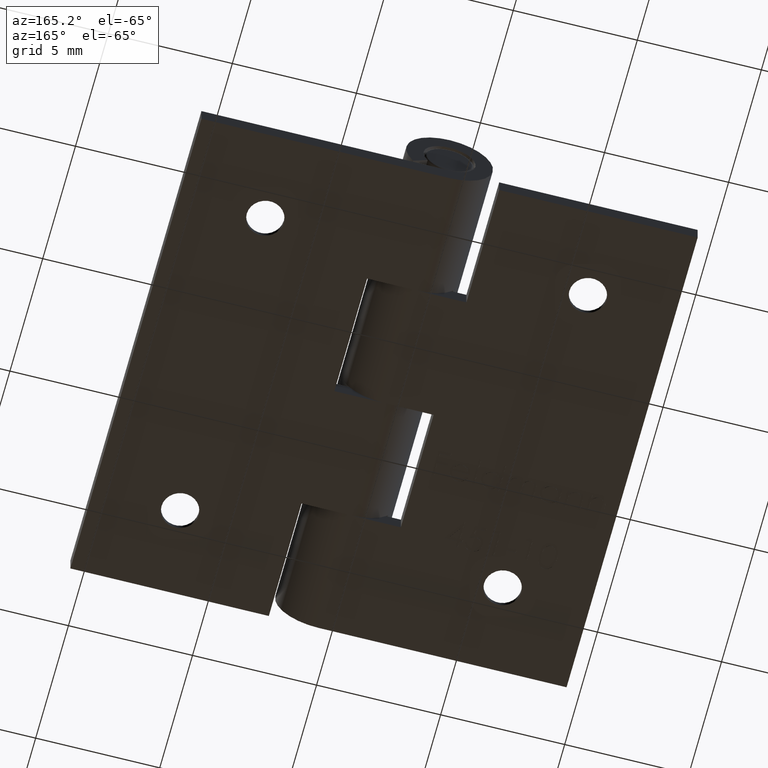
[diagram: clean part render]
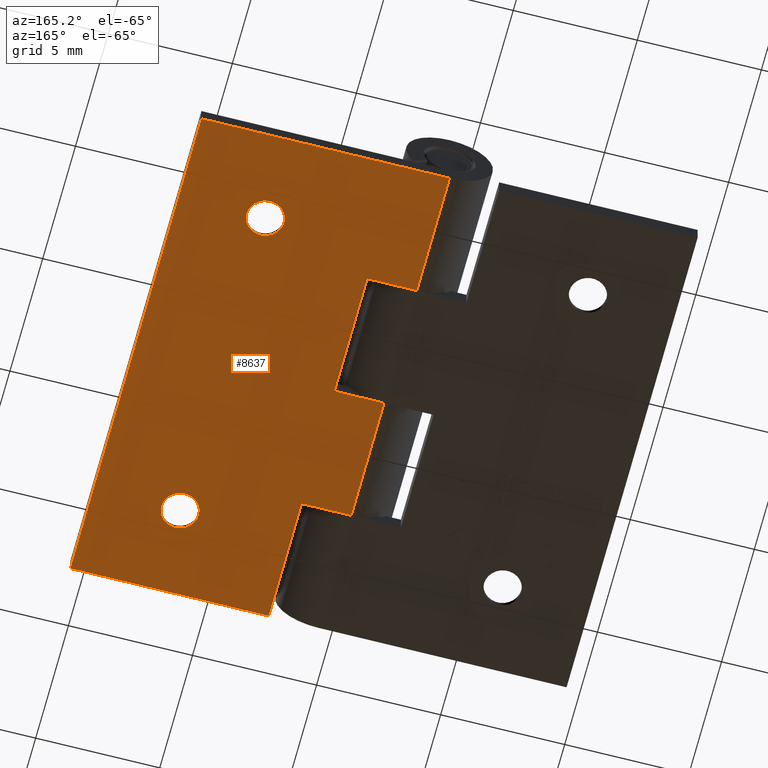
[diagram: same view with one face highlighted and labeled with its STEP entity id]
A machine part, auxiliary view. The second image highlights one B-rep face of the part: STEP entity #8637.
In plain terms, the highlighted planar face has unit normal (0, 0, 1).
Its self-contained STEP definition (entity closure, byte-faithful):
#80 = CARTESIAN_POINT ( 'NONE',  ( -11.75000000000000000, -10.00000000000000000, 1.084202172485504434E-15 ) ) ;
#412 = DIRECTION ( 'NONE',  ( -1.000000000000000000, 0.000000000000000000, 1.301042606982605321E-16 ) ) ;
#438 = VECTOR ( 'NONE', #412, 1000.000000000000000 ) ;
#515 = VERTEX_POINT ( 'NONE', #1952 ) ;
#563 = LINE ( 'NONE', #2904, #438 ) ;
#572 = CARTESIAN_POINT ( 'NONE',  ( -3.750000000000000444, -5.000000000000000000, 4.878909776184769953E-16 ) ) ;
#609 = CIRCLE ( 'NONE', #6478, 0.7500000000000006661 ) ;
#677 = DIRECTION ( 'NONE',  ( 8.673617379884034239E-17, 1.000000000000000000, 0.000000000000000000 ) ) ;
#836 = EDGE_LOOP ( 'NONE', ( #6762 ) ) ;
#1043 = EDGE_LOOP ( 'NONE', ( #7894, #6210, #8353, #8294, #6379, #5961, #3383, #3213, #9739, #9691 ) ) ;
#1174 = VERTEX_POINT ( 'NONE', #4374 ) ;
#1246 = VERTEX_POINT ( 'NONE', #1981 ) ;
#1250 = DIRECTION ( 'NONE',  ( -0.000000000000000000, 1.000000000000000000, -0.000000000000000000 ) ) ;
#1443 = EDGE_CURVE ( 'NONE', #515, #6344, #3877, .T. ) ;
#1480 = DIRECTION ( 'NONE',  ( -0.000000000000000000, -1.000000000000000000, -0.000000000000000000 ) ) ;
#1535 = DIRECTION ( 'NONE',  ( -1.000000000000000000, -1.470104640658311001E-16, 1.301042606982605321E-16 ) ) ;
#1882 = FACE_OUTER_BOUND ( 'NONE', #1043, .T. ) ;
#1952 = CARTESIAN_POINT ( 'NONE',  ( -1.750000000000000444, -10.00000000000000000, -1.084202172485504434E-16 ) ) ;
#1961 = CARTESIAN_POINT ( 'NONE',  ( -1.750000000000000444, 10.00000000000000000, -1.084202172485504434E-16 ) ) ;
#1981 = CARTESIAN_POINT ( 'NONE',  ( -7.500000000000001776, -6.500000000000000888, -1.084202172485504434E-16 ) ) ;
#2017 = DIRECTION ( 'NONE',  ( 1.000000000000000000, 0.000000000000000000, 0.000000000000000000 ) ) ;
#2037 = EDGE_CURVE ( 'NONE', #3991, #5933, #3364, .T. ) ;
#2050 = VECTOR ( 'NONE', #2602, 1000.000000000000000 ) ;
#2078 = CARTESIAN_POINT ( 'NONE',  ( -1.750000000000000444, -10.00000000000000000, -1.084202172485504434E-16 ) ) ;
#2216 = CARTESIAN_POINT ( 'NONE',  ( -3.750000000000000000, 5.000000000000000888, 4.878909776184769953E-16 ) ) ;
#2511 = FACE_BOUND ( 'NONE', #4181, .T. ) ;
#2572 = VECTOR ( 'NONE', #677, 1000.000000000000000 ) ;
#2602 = DIRECTION ( 'NONE',  ( -0.000000000000000000, -1.000000000000000000, -0.000000000000000000 ) ) ;
#2643 = FACE_BOUND ( 'NONE', #836, .T. ) ;
#2670 = CARTESIAN_POINT ( 'NONE',  ( -1.750000000000000444, 10.00000000000000000, -1.084202172485504434E-16 ) ) ;
#2718 = EDGE_CURVE ( 'NONE', #3288, #8731, #7362, .T. ) ;
#2904 = CARTESIAN_POINT ( 'NONE',  ( 8.050000000000000711, 5.000000000000000888, -1.047339298620997480E-15 ) ) ;
#3025 = CIRCLE ( 'NONE', #6271, 0.7500000000000006661 ) ;
#3040 = DIRECTION ( 'NONE',  ( 1.192622389734054877E-16, -0.000000000000000000, 1.000000000000000000 ) ) ;
#3062 = CARTESIAN_POINT ( 'NONE',  ( -1.749999999999999778, 5.000000000000000888, 2.276824562219558818E-16 ) ) ;
#3115 = EDGE_CURVE ( 'NONE', #8731, #3552, #3848, .T. ) ;
#3120 = PLANE ( 'NONE',  #8332 ) ;
#3211 = VECTOR ( 'NONE', #5169, 1000.000000000000000 ) ;
#3213 = ORIENTED_EDGE ( 'NONE', *, *, #3752, .F. ) ;
#3288 = VERTEX_POINT ( 'NONE', #9287 ) ;
#3364 = LINE ( 'NONE', #8505, #9183 ) ;
#3383 = ORIENTED_EDGE ( 'NONE', *, *, #5498, .F. ) ;
#3399 = VERTEX_POINT ( 'NONE', #8613 ) ;
#3448 = LINE ( 'NONE', #5600, #3564 ) ;
#3552 = VERTEX_POINT ( 'NONE', #4681 ) ;
#3564 = VECTOR ( 'NONE', #1480, 1000.000000000000000 ) ;
#3690 = LINE ( 'NONE', #1961, #9524 ) ;
#3717 = DIRECTION ( 'NONE',  ( -1.000000000000000000, 0.000000000000000000, 1.192622389734054877E-16 ) ) ;
#3752 = EDGE_CURVE ( 'NONE', #5933, #1174, #5398, .T. ) ;
#3848 = LINE ( 'NONE', #572, #2572 ) ;
#3877 = LINE ( 'NONE', #2078, #5580 ) ;
#3991 = VERTEX_POINT ( 'NONE', #2216 ) ;
#4165 = EDGE_CURVE ( 'NONE', #9017, #9017, #609, .T. ) ;
#4181 = EDGE_LOOP ( 'NONE', ( #5439 ) ) ;
#4374 = CARTESIAN_POINT ( 'NONE',  ( -11.75000000000000000, 10.00000000000000000, 1.084202172485504434E-15 ) ) ;
#4521 = CARTESIAN_POINT ( 'NONE',  ( -8.250000000000001776, -6.500000000000000888, -1.084202172485504434E-16 ) ) ;
#4681 = CARTESIAN_POINT ( 'NONE',  ( -3.750000000000000000, 8.673617379884035472E-16, 4.878909776184769953E-16 ) ) ;
#4906 = CARTESIAN_POINT ( 'NONE',  ( -8.250000000000003553, 6.499999999999999112, -1.084202172485504434E-16 ) ) ;
#5169 = DIRECTION ( 'NONE',  ( -1.000000000000000000, 0.000000000000000000, 1.192622389734054877E-16 ) ) ;
#5357 = CARTESIAN_POINT ( 'NONE',  ( -7.500000000000003553, 6.499999999999999112, -1.084202172485504434E-16 ) ) ;
#5393 = LINE ( 'NONE', #6634, #6821 ) ;
#5398 = LINE ( 'NONE', #2670, #3211 ) ;
#5439 = ORIENTED_EDGE ( 'NONE', *, *, #4165, .T. ) ;
#5498 = EDGE_CURVE ( 'NONE', #1174, #6344, #3448, .T. ) ;
#5545 = CARTESIAN_POINT ( 'NONE',  ( -1.750000000000000444, 10.00000000000000000, -1.084202172485504434E-16 ) ) ;
#5580 = VECTOR ( 'NONE', #3717, 1000.000000000000000 ) ;
#5600 = CARTESIAN_POINT ( 'NONE',  ( -11.75000000000000000, 10.00000000000000000, 1.084202172485504434E-15 ) ) ;
#5933 = VERTEX_POINT ( 'NONE', #6225 ) ;
#5961 = ORIENTED_EDGE ( 'NONE', *, *, #1443, .T. ) ;
#6210 = ORIENTED_EDGE ( 'NONE', *, *, #9855, .F. ) ;
#6225 = CARTESIAN_POINT ( 'NONE',  ( -3.750000000000000000, 10.00000000000000000, 1.301042606982604581E-16 ) ) ;
#6271 = AXIS2_PLACEMENT_3D ( 'NONE', #4521, #6983, #2017 ) ;
#6344 = VERTEX_POINT ( 'NONE', #80 ) ;
#6379 = ORIENTED_EDGE ( 'NONE', *, *, #10525, .T. ) ;
#6412 = CARTESIAN_POINT ( 'NONE',  ( 8.050000000000000711, -4.999999999999998224, -1.047339298620997480E-15 ) ) ;
#6445 = DIRECTION ( 'NONE',  ( 1.000000000000000000, 0.000000000000000000, -1.192622389734054877E-16 ) ) ;
#6478 = AXIS2_PLACEMENT_3D ( 'NONE', #4906, #6514, #8150 ) ;
#6514 = DIRECTION ( 'NONE',  ( 0.000000000000000000, 0.000000000000000000, 1.000000000000000000 ) ) ;
#6634 = CARTESIAN_POINT ( 'NONE',  ( 8.050000000000000711, 8.673617379884035472E-16, -1.047339298620997480E-15 ) ) ;
#6762 = ORIENTED_EDGE ( 'NONE', *, *, #7530, .T. ) ;
#6821 = VECTOR ( 'NONE', #6879, 1000.000000000000000 ) ;
#6848 = VECTOR ( 'NONE', #1535, 1000.000000000000000 ) ;
#6879 = DIRECTION ( 'NONE',  ( 1.000000000000000000, -0.000000000000000000, -1.301042606982605321E-16 ) ) ;
#6983 = DIRECTION ( 'NONE',  ( 0.000000000000000000, 0.000000000000000000, 1.000000000000000000 ) ) ;
#7083 = EDGE_CURVE ( 'NONE', #7237, #3991, #563, .T. ) ;
#7237 = VERTEX_POINT ( 'NONE', #3062 ) ;
#7362 = LINE ( 'NONE', #6412, #6848 ) ;
#7530 = EDGE_CURVE ( 'NONE', #1246, #1246, #3025, .T. ) ;
#7894 = ORIENTED_EDGE ( 'NONE', *, *, #10380, .T. ) ;
#8047 = CARTESIAN_POINT ( 'NONE',  ( -3.750000000000000444, -5.000000000000000000, 4.878909776184769953E-16 ) ) ;
#8150 = DIRECTION ( 'NONE',  ( 1.000000000000000000, 0.000000000000000000, 0.000000000000000000 ) ) ;
#8294 = ORIENTED_EDGE ( 'NONE', *, *, #2718, .F. ) ;
#8332 = AXIS2_PLACEMENT_3D ( 'NONE', #5545, #3040, #6445 ) ;
#8353 = ORIENTED_EDGE ( 'NONE', *, *, #3115, .F. ) ;
#8505 = CARTESIAN_POINT ( 'NONE',  ( -3.750000000000000000, 9.999999999999998224, 4.878909776184769953E-16 ) ) ;
#8613 = CARTESIAN_POINT ( 'NONE',  ( -1.749999999999999778, 8.673617379884035472E-16, 2.276824562219558818E-16 ) ) ;
#8637 = ADVANCED_FACE ( 'NONE', ( #2643, #2511, #1882 ), #3120, .F. ) ;
#8655 = DIRECTION ( 'NONE',  ( -0.000000000000000000, -1.000000000000000000, -0.000000000000000000 ) ) ;
#8731 = VERTEX_POINT ( 'NONE', #8047 ) ;
#9017 = VERTEX_POINT ( 'NONE', #5357 ) ;
#9183 = VECTOR ( 'NONE', #1250, 1000.000000000000000 ) ;
#9252 = CARTESIAN_POINT ( 'NONE',  ( -1.750000000000000444, 10.00000000000000000, -1.084202172485504434E-16 ) ) ;
#9287 = CARTESIAN_POINT ( 'NONE',  ( -1.749999999999999778, -5.000000000000000000, 2.276824562219558818E-16 ) ) ;
#9524 = VECTOR ( 'NONE', #8655, 1000.000000000000000 ) ;
#9691 = ORIENTED_EDGE ( 'NONE', *, *, #7083, .F. ) ;
#9739 = ORIENTED_EDGE ( 'NONE', *, *, #2037, .F. ) ;
#9855 = EDGE_CURVE ( 'NONE', #3552, #3399, #5393, .T. ) ;
#9938 = LINE ( 'NONE', #9252, #2050 ) ;
#10380 = EDGE_CURVE ( 'NONE', #7237, #3399, #9938, .T. ) ;
#10525 = EDGE_CURVE ( 'NONE', #3288, #515, #3690, .T. ) ;